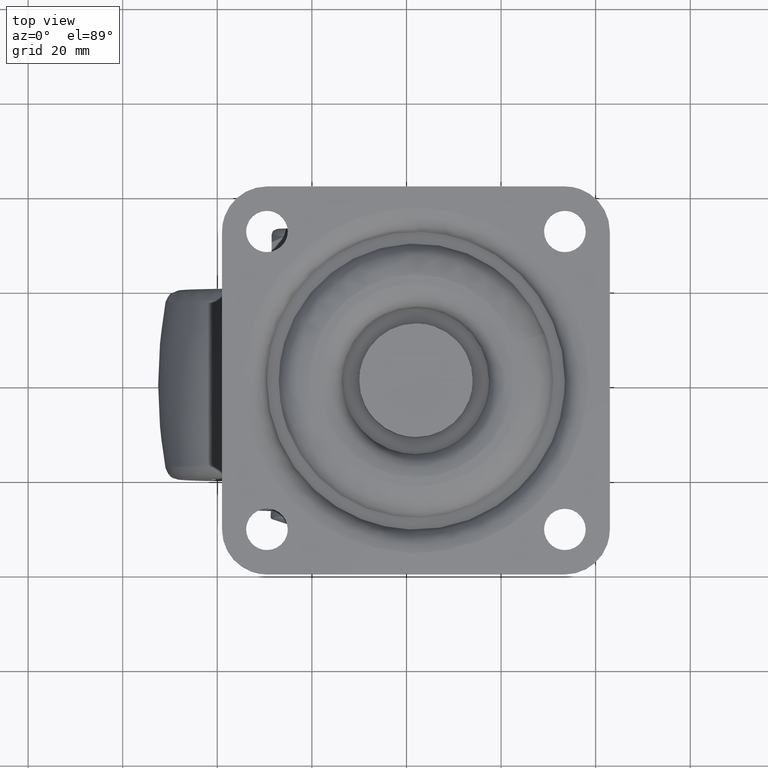
[diagram: clean part render]
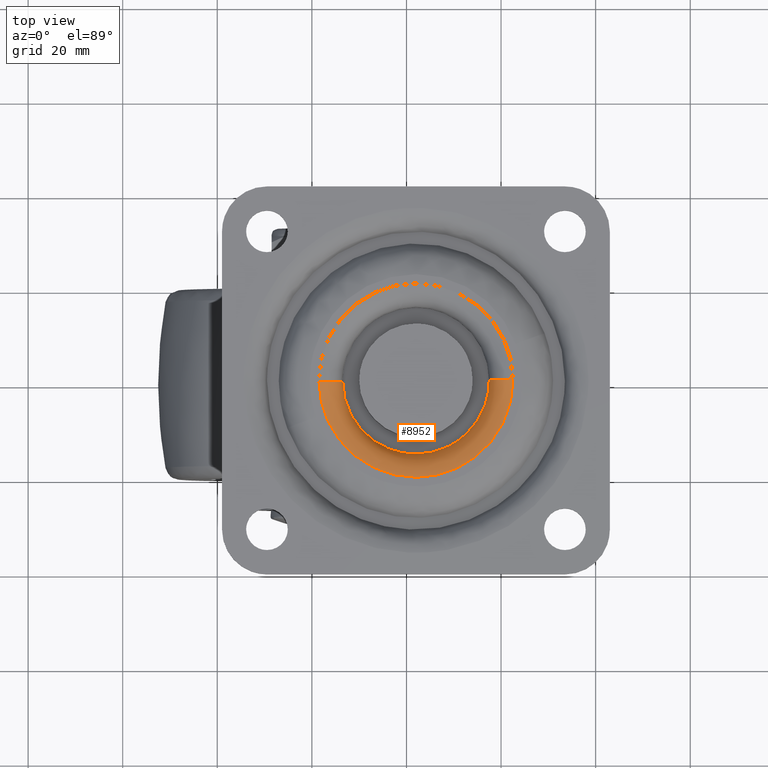
[diagram: same view with one face highlighted and labeled with its STEP entity id]
A machine part, top view. The second image highlights one B-rep face of the part: STEP entity #8952.
In plain terms, the highlighted face is a freeform B-spline surface patch.
Its self-contained STEP definition (entity closure, byte-faithful):
#8753=CARTESIAN_POINT('',(1.501618595578334,-0.257603818012416,57.500000000000000));
#8754=VERTEX_POINT('',#8753);
#8779=CARTESIAN_POINT('',(42.498381404422162,0.257603818012479,57.500000000000000));
#8780=VERTEX_POINT('',#8779);
#8797=CARTESIAN_POINT('',(42.500000000000249,2.842171E-014,57.500000000000000));
#8798=VERTEX_POINT('',#8797);
#8799=CARTESIAN_POINT('',(42.498381404422162,0.257603818012479,57.500000000000000));
#8800=CARTESIAN_POINT('',(42.500000000000249,2.842171E-014,57.500000000000000));
#8801=QUASI_UNIFORM_CURVE('',1,(#8799,#8800),.UNSPECIFIED.,.F.,.U.);
#8802=EDGE_CURVE('',#8780,#8798,#8801,.T.);
#8804=CARTESIAN_POINT('',(22.128711165776188,-20.499595933470928,57.500000000000000));
#8805=VERTEX_POINT('',#8804);
#8806=CARTESIAN_POINT('',(42.500000000000249,2.842171E-014,57.500000000000000));
#8807=CARTESIAN_POINT('',(42.500303874957872,-1.503429157849000,57.500000000000163));
#8808=CARTESIAN_POINT('',(42.259987652507483,-3.674871654648806,57.499999999999829));
#8809=CARTESIAN_POINT('',(41.437934576347232,-6.657710677098735,57.500000000000121));
#8810=CARTESIAN_POINT('',(40.510477394387827,-8.946425069102132,57.500000000000128));
#8811=CARTESIAN_POINT('',(39.167394657159242,-11.311809615260570,57.499999999999780));
#8812=CARTESIAN_POINT('',(37.626667587838803,-13.347715988791380,57.500000000000107));
#8813=CARTESIAN_POINT('',(35.530366800972750,-15.509629038942901,57.500000000000007));
#8814=CARTESIAN_POINT('',(33.088127504359441,-17.358468872166188,57.499999999999993));
#8815=CARTESIAN_POINT('',(30.302873186748439,-18.808003978954179,57.500000000000071));
#8816=CARTESIAN_POINT('',(27.786134820702141,-19.722472976697858,57.499999999999417));
#8817=CARTESIAN_POINT('',(25.092740716124279,-20.333903155088191,57.500000000002643));
#8818=CARTESIAN_POINT('',(23.172714450757478,-20.493108578917870,57.499999999995268));
#8819=CARTESIAN_POINT('',(22.128711165776188,-20.499595933470928,57.500000000000000));
#8820=B_SPLINE_CURVE_WITH_KNOTS('',3,(#8806,#8807,#8808,#8809,#8810,#8811,#8812,#8813,#8814,#8815,#8816,#8817,#8818,#8819),.UNSPECIFIED.,.F.,.U.,(4,1,1,1,1,1,1,1,1,1,1,4),(0.000000085599382,4.510195525583118,6.514749902672605,9.271008241185228,11.901978934363781,14.658254970662311,16.913303580015349,20.922378933479411,23.803927666340499,26.309621305377700,28.940601549640860,32.072662599446467),.UNSPECIFIED.);
#8821=EDGE_CURVE('',#8798,#8805,#8820,.T.);
#8823=CARTESIAN_POINT('',(22.128711165776188,-20.499595933470928,57.500000000000000));
#8824=CARTESIAN_POINT('',(20.792374932015509,-20.508171961619070,57.500000000000270));
#8825=CARTESIAN_POINT('',(18.619585178751912,-20.308487029869259,57.499999999999680));
#8826=CARTESIAN_POINT('',(15.822732765398470,-19.593095931318441,57.500000000000377));
#8827=CARTESIAN_POINT('',(13.360318430950061,-18.656544011203678,57.499999999999687));
#8828=CARTESIAN_POINT('',(10.595175234339830,-17.164510228800879,57.500000000000547));
#8829=CARTESIAN_POINT('',(8.132539257605888,-15.205100360563501,57.499999999999282));
#8830=CARTESIAN_POINT('',(5.797723614104623,-12.693704274609530,57.499999999999851));
#8831=CARTESIAN_POINT('',(4.006509055081740,-10.054144428498081,57.500000000001151));
#8832=CARTESIAN_POINT('',(2.584822361640246,-6.835047337333640,57.499999999999631));
#8833=CARTESIAN_POINT('',(1.734020046912304,-3.637543629166462,57.500000000000391));
#8834=CARTESIAN_POINT('',(1.516204644225631,-1.426823364923200,57.499999999999943));
#8835=CARTESIAN_POINT('',(1.501618595578334,-0.257603818012416,57.500000000000000));
#8836=B_SPLINE_CURVE_WITH_KNOTS('',3,(#8823,#8824,#8825,#8826,#8827,#8828,#8829,#8830,#8831,#8832,#8833,#8834,#8835),.UNSPECIFIED.,.F.,.U.,(4,1,1,1,1,1,1,1,1,1,4),(0.000000085625583,4.009050163008574,6.514712004270120,8.644536153316828,11.901909696123649,15.911007108352001,18.040733261037360,22.175107717773571,25.432479801421781,28.564565663403169,32.072476021693383),.UNSPECIFIED.);
#8837=EDGE_CURVE('',#8805,#8754,#8836,.T.);
#8842=CARTESIAN_POINT('',(37.505428915213962,0.628559266315688,52.152314454433778));
#8843=CARTESIAN_POINT('',(37.508137790424321,0.413005173371410,52.152314454433771));
#8844=CARTESIAN_POINT('',(37.705804109222697,-15.315952694940814,52.152314454433764));
#8845=CARTESIAN_POINT('',(22.194925707141053,-15.510878402081611,52.152314454433771));
#8846=CARTESIAN_POINT('',(6.684047305059411,-15.705804109222408,52.152314454433764));
#8847=CARTESIAN_POINT('',(6.486380986263236,0.023153758915229,52.152314454433778));
#8848=CARTESIAN_POINT('',(6.483672111055022,0.238707851688954,52.152314454433771));
#8849=CARTESIAN_POINT('',(37.105812038172687,0.612359592484418,57.887685870088781));
#8850=CARTESIAN_POINT('',(37.108451098335813,0.402360912029976,57.887685870088788));
#8851=CARTESIAN_POINT('',(37.301023021007104,-14.921219133016654,57.887685870088767));
#8852=CARTESIAN_POINT('',(22.189901943995334,-15.111121077011742,57.887685870088788));
#8853=CARTESIAN_POINT('',(7.078780866983570,-15.301023021006831,57.887685870088767));
#8854=CARTESIAN_POINT('',(6.886208944314422,0.022557023869713,57.887685870088774));
#8855=CARTESIAN_POINT('',(6.883569884153372,0.232555704157997,57.887685870088767));
#8856=CARTESIAN_POINT('',(42.838715734329419,0.844760112380963,57.487896817658800));
#8857=CARTESIAN_POINT('',(42.842356361156128,0.555063484651457,57.487896817658800));
#8858=CARTESIAN_POINT('',(43.108012490387658,-20.584066790770564,57.487896817658815));
#8859=CARTESIAN_POINT('',(22.261972849808657,-20.846039640578976,57.487896817658807));
#8860=CARTESIAN_POINT('',(1.415933209229654,-21.108012490387384,57.487896817658815));
#8861=CARTESIAN_POINT('',(1.150277080001061,0.031117784800011,57.487896817658800));
#8862=CARTESIAN_POINT('',(1.146636453177230,0.320814412300299,57.487896817658807));
#8870=(BOUNDED_SURFACE()B_SPLINE_SURFACE(2,2,((#8842,#8849,#8856),(#8843,#8850,#8857),(#8844,#8851,#8858),(#8845,#8852,#8859),(#8846,#8853,#8860),(#8847,#8854,#8861),(#8848,#8855,#8862)),.UNSPECIFIED.,.F.,.F.,.U.)B_SPLINE_SURFACE_WITH_KNOTS((3,1,2,1,3),(3,3),(0.0,0.690831532937105,35.232408154200620,69.773984775464143,70.464816307844956),(0.0,9.113649966391312),.UNSPECIFIED.)GEOMETRIC_REPRESENTATION_ITEM()RATIONAL_B_SPLINE_SURFACE(((0.921146729412852,0.604479481457621,0.921146741245486),(0.915813262251925,0.600979527149730,0.915813274016047),(0.643806437242182,0.422481857576905,0.643806445512228),(0.910479795090997,0.597479572841838,0.910479806786608),(0.643806437242182,0.422481857576905,0.643806445512228),(0.915813262247630,0.600979527146911,0.915813274011752),(0.921146729404263,0.604479481451985,0.921146741236896)))REPRESENTATION_ITEM('')SURFACE());
#8871=CARTESIAN_POINT('',(37.500000000000249,2.842171E-014,52.500000000000000));
#8872=VERTEX_POINT('',#8871);
#8873=CARTESIAN_POINT('',(37.498776185159002,0.194773618223117,52.500000000142933));
#8874=VERTEX_POINT('',#8873);
#8875=CARTESIAN_POINT('',(37.500000000000249,2.842171E-014,52.500000000000000));
#8876=CARTESIAN_POINT('',(37.498776185159002,0.194773618223117,52.500000000142933));
#8877=QUASI_UNIFORM_CURVE('',1,(#8875,#8876),.UNSPECIFIED.,.F.,.U.);
#8878=EDGE_CURVE('',#8872,#8874,#8877,.T.);
#8879=ORIENTED_EDGE('',*,*,#8878,.F.);
#8880=CARTESIAN_POINT('',(32.669495981563827,-11.243302695355929,52.500000000042348));
#8881=VERTEX_POINT('',#8880);
#8882=CARTESIAN_POINT('',(32.669495981563827,-11.243302695355929,52.500000000042348));
#8883=CARTESIAN_POINT('',(33.501345317835913,-10.454202654817040,52.500000000037112));
#8884=CARTESIAN_POINT('',(34.946055072543501,-8.740599125049201,52.500000000027363));
#8885=CARTESIAN_POINT('',(36.282226010416132,-6.205539703065531,52.500000000016733));
#8886=CARTESIAN_POINT('',(37.242756623487018,-3.308450075263130,52.500000000006928));
#8887=CARTESIAN_POINT('',(37.500481840870279,-1.343188203122519,52.500000000002103));
#8888=CARTESIAN_POINT('',(37.500000000000249,2.842171E-014,52.500000000000000));
#8889=B_SPLINE_CURVE_WITH_KNOTS('',3,(#8882,#8883,#8884,#8885,#8886,#8887,#8888),.UNSPECIFIED.,.F.,.U.,(4,1,1,1,4),(0.000000024865480,3.439702559854991,6.682842612103108,8.550112454849874,12.579481574356350),.UNSPECIFIED.);
#8890=EDGE_CURVE('',#8881,#8872,#8889,.T.);
#8891=ORIENTED_EDGE('',*,*,#8890,.F.);
#8892=CARTESIAN_POINT('',(22.097286846528050,-15.499694683105590,52.500000000071481));
#8893=VERTEX_POINT('',#8892);
#8894=CARTESIAN_POINT('',(22.097286846528050,-15.499694683105590,52.500000000071481));
#8895=CARTESIAN_POINT('',(23.130609666325231,-15.493343949039049,52.500000000068667));
#8896=CARTESIAN_POINT('',(25.013651258465611,-15.292248057120171,52.500000000063459));
#8897=CARTESIAN_POINT('',(27.527751790353950,-14.545720781607500,52.500000000056673));
#8898=CARTESIAN_POINT('',(30.117089953348941,-13.321824485564511,52.500000000049319));
#8899=CARTESIAN_POINT('',(31.743771025375612,-12.122231836975701,52.500000000044857));
#8900=CARTESIAN_POINT('',(32.669495981563827,-11.243302695355929,52.500000000042348));
#8901=B_SPLINE_CURVE_WITH_KNOTS('',3,(#8894,#8895,#8896,#8897,#8898,#8899,#8900),.UNSPECIFIED.,.F.,.U.,(4,1,1,1,4),(0.000000013258362,3.100020014769944,5.652983019646139,7.841218544896647,11.670662377670959),.UNSPECIFIED.);
#8902=EDGE_CURVE('',#8893,#8881,#8901,.T.);
#8903=ORIENTED_EDGE('',*,*,#8902,.F.);
#8904=CARTESIAN_POINT('',(6.501223814841493,-0.194773618223059,52.500000000142933));
#8905=VERTEX_POINT('',#8904);
#8906=CARTESIAN_POINT('',(6.501223814841493,-0.194773618223059,52.500000000142933));
#8907=CARTESIAN_POINT('',(6.514528958267131,-1.268264170879419,52.500000000142919));
#8908=CARTESIAN_POINT('',(6.714034577107026,-2.970872994031337,52.500000000142037));
#8909=CARTESIAN_POINT('',(7.399423941489090,-5.341262210504316,52.500000000138932));
#8910=CARTESIAN_POINT('',(8.320375055276115,-7.426499853507544,52.500000000134797));
#8911=CARTESIAN_POINT('',(9.767629578304288,-9.660775091158318,52.500000000128097));
#8912=CARTESIAN_POINT('',(11.730903008861720,-11.734144151004980,52.500000000119272));
#8913=CARTESIAN_POINT('',(13.842282316179880,-13.251513260896671,52.500000000109353));
#8914=CARTESIAN_POINT('',(16.210928315467470,-14.456042656083500,52.500000000098723));
#8915=CARTESIAN_POINT('',(18.875298990321639,-15.295976673048051,52.500000000086317));
#8916=CARTESIAN_POINT('',(21.023743066752779,-15.506592438751641,52.500000000077073));
#8917=CARTESIAN_POINT('',(22.097286846528050,-15.499694683105590,52.500000000071481));
#8918=B_SPLINE_CURVE_WITH_KNOTS('',3,(#8906,#8907,#8908,#8909,#8910,#8911,#8912,#8913,#8914,#8915,#8916,#8917),.UNSPECIFIED.,.F.,.U.,(4,1,1,1,1,1,1,1,1,4),(0.000000017244762,3.220682976946751,5.115225762101595,7.388682818126171,10.041018564295300,13.072262977273500,15.914050452355990,17.808591938446089,21.029311345129521,24.250002747581480),.UNSPECIFIED.);
#8919=EDGE_CURVE('',#8905,#8893,#8918,.T.);
#8920=ORIENTED_EDGE('',*,*,#8919,.F.);
#8921=CARTESIAN_POINT('',(6.501223814841493,-0.194773618223059,52.500000000142933));
#8922=CARTESIAN_POINT('',(6.501317777054363,-0.194772437413052,52.909065688625937));
#8923=CARTESIAN_POINT('',(6.425501582605784,-0.195725221991366,53.522602844788914));
#8924=CARTESIAN_POINT('',(6.128450247839230,-0.199458275706401,54.460277295008467));
#8925=CARTESIAN_POINT('',(5.626380375782887,-0.205767803974741,55.428496193500571));
#8926=CARTESIAN_POINT('',(4.801026880488220,-0.216140047931338,56.328171817212521));
#8927=CARTESIAN_POINT('',(3.922291324322748,-0.227183145950854,56.899491936893092));
#8928=CARTESIAN_POINT('',(2.892062284119299,-0.240130067452225,57.356373618062449));
#8929=CARTESIAN_POINT('',(2.094800926547038,-0.250149276580718,57.500504315195641));
#8930=CARTESIAN_POINT('',(1.501618595578334,-0.257603818012416,57.500000000000000));
#8931=B_SPLINE_CURVE_WITH_KNOTS('',3,(#8921,#8922,#8923,#8924,#8925,#8926,#8927,#8928,#8929,#8930),.UNSPECIFIED.,.F.,.U.,(4,1,1,1,1,1,1,4),(0.000000175739211,1.227173757477505,1.840786613247066,2.945271903689503,4.479231591031104,5.461000902345537,6.074606832946064,7.854030913323820),.UNSPECIFIED.);
#8932=EDGE_CURVE('',#8905,#8754,#8931,.T.);
#8933=ORIENTED_EDGE('',*,*,#8932,.T.);
#8934=ORIENTED_EDGE('',*,*,#8837,.F.);
#8935=ORIENTED_EDGE('',*,*,#8821,.F.);
#8936=ORIENTED_EDGE('',*,*,#8802,.F.);
#8937=CARTESIAN_POINT('',(37.498776185159002,0.194773618223117,52.500000000142933));
#8938=CARTESIAN_POINT('',(37.498513339571758,0.194770315054349,53.011354015727051));
#8939=CARTESIAN_POINT('',(37.638069399205783,0.196524120579805,53.911142330646577));
#8940=CARTESIAN_POINT('',(38.145677232143640,0.202903244586900,55.037597512630143));
#8941=CARTESIAN_POINT('',(38.757809578698982,0.210595931506562,55.862938335868442));
#8942=CARTESIAN_POINT('',(39.514432052190962,0.220104430493469,56.557296036646051));
#8943=CARTESIAN_POINT('',(40.436148120198148,0.231687665986637,57.102209829380257));
#8944=CARTESIAN_POINT('',(41.475816927073872,0.244753217334352,57.431506927395382));
#8945=CARTESIAN_POINT('',(42.171160756692053,0.253491625608107,57.500034295509579));
#8946=CARTESIAN_POINT('',(42.498381404422162,0.257603818012479,57.500000000000000));
#8947=B_SPLINE_CURVE_WITH_KNOTS('',3,(#8937,#8938,#8939,#8940,#8941,#8942,#8943,#8944,#8945,#8946),.UNSPECIFIED.,.F.,.U.,(4,1,1,1,1,1,1,4),(0.000000175735583,1.533986324381540,2.699843068698814,3.681618812229576,4.601940827263842,5.767802117389328,6.872286558869773,7.854030913323827),.UNSPECIFIED.);
#8948=EDGE_CURVE('',#8874,#8780,#8947,.T.);
#8949=ORIENTED_EDGE('',*,*,#8948,.F.);
#8950=EDGE_LOOP('',(#8879,#8891,#8903,#8920,#8933,#8934,#8935,#8936,#8949));
#8951=FACE_OUTER_BOUND('',#8950,.T.);
#8952=ADVANCED_FACE('',(#8951),#8870,.T.);